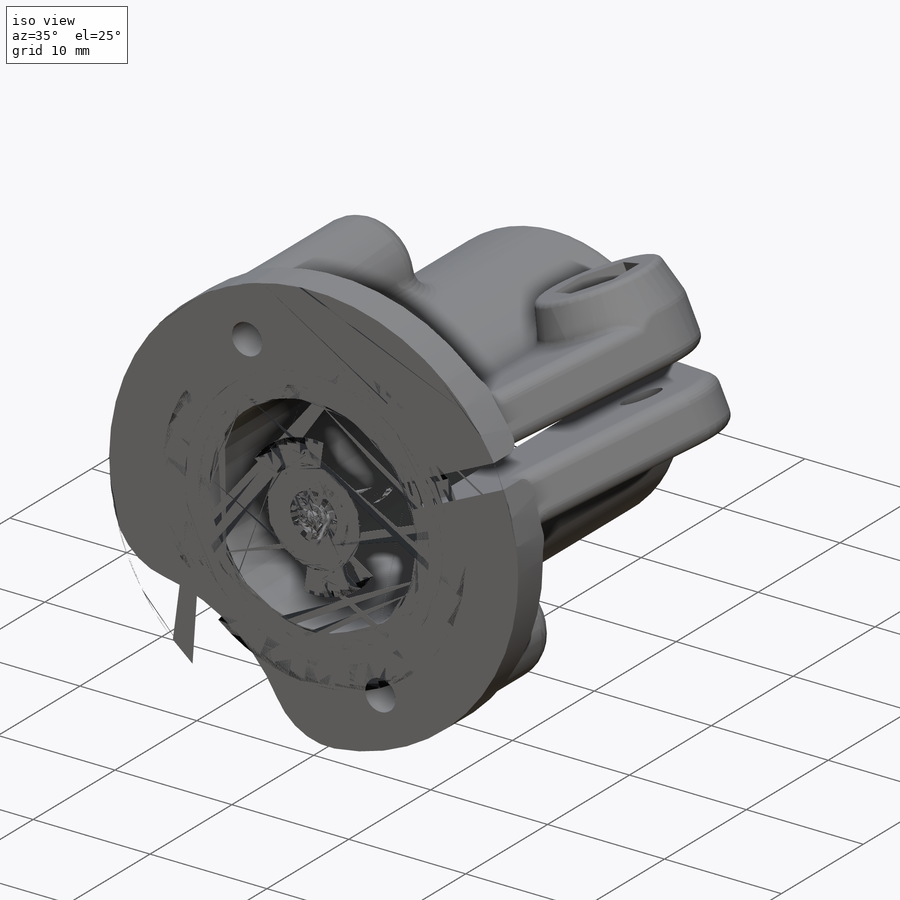
[diagram: iso view]
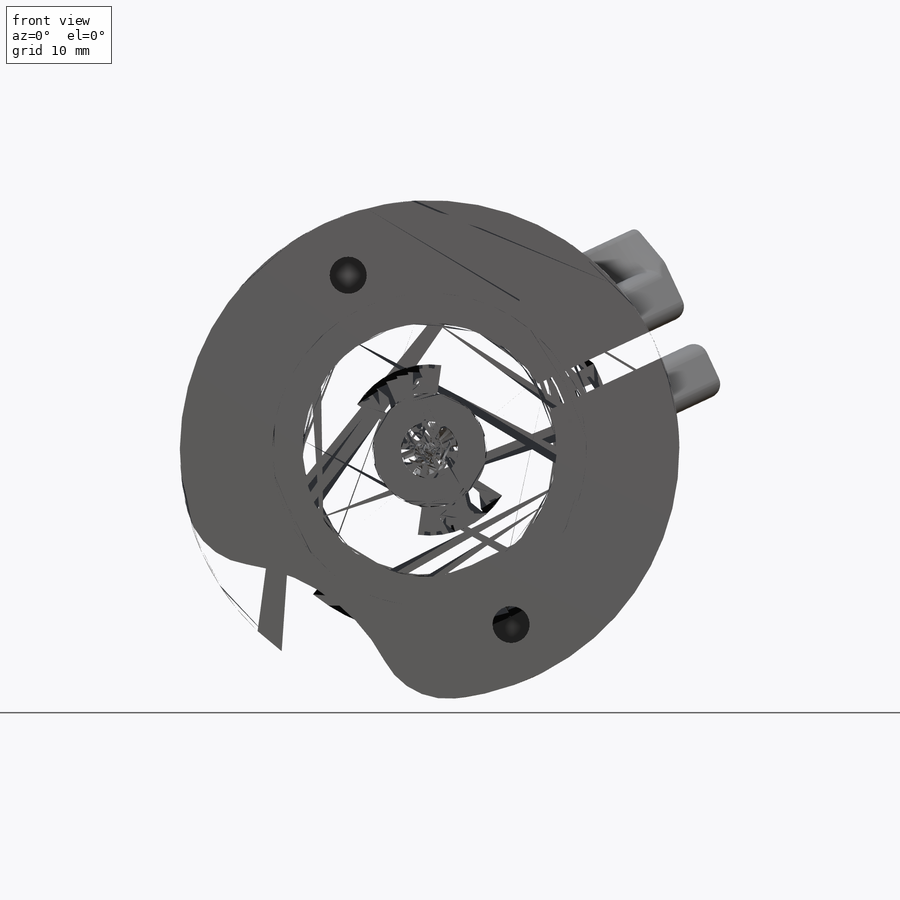
[diagram: front view]
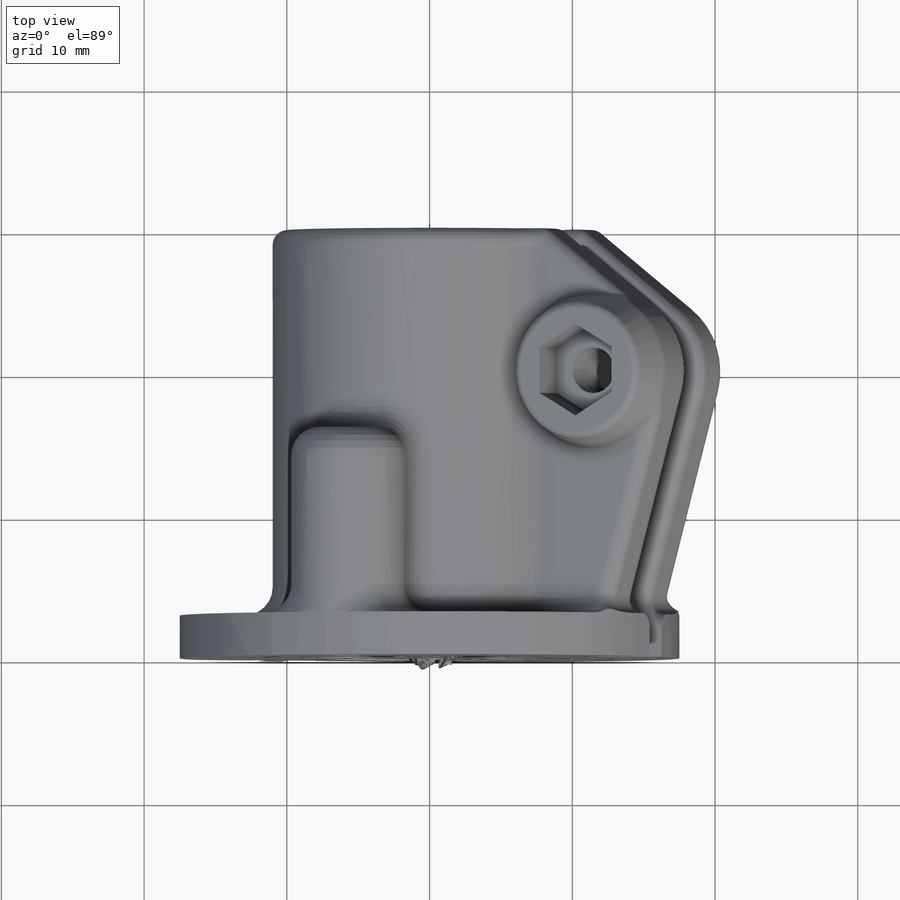
[diagram: top view]
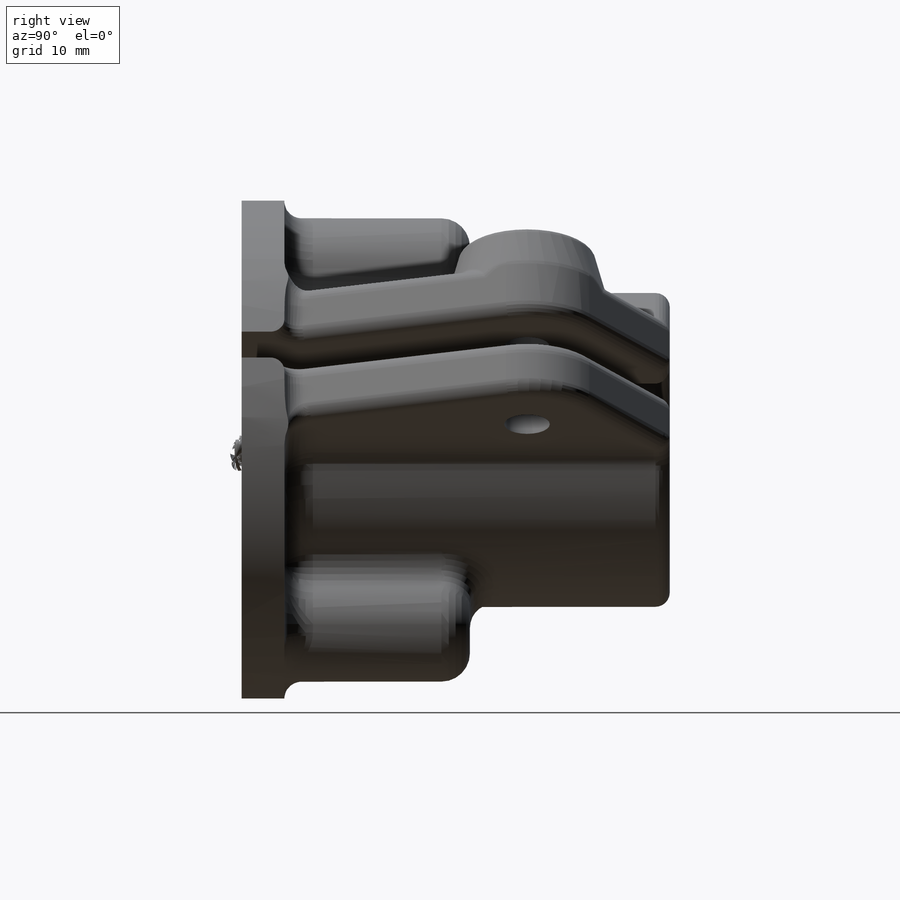
[diagram: right view]
SOLIDWORKS PART (.sldprt)
format: sldprt  version: not decoded by parser v0  size: 950,784 bytes
history: native  units: mm
features: sketch x10, extrude x5, fillet x5, cut_extrude x4, material x1, plane x1 (+13 scaffold rows collapsed)
feature tree (39):
  scaffold x13  (default folders/planes/origin — collapsed)
  material  "ABS"
  sketch  "Sketch1"  dims[c1.D1=19.0mm c1.D3=3.5mm c1.D2=8.0mm c1.D4=17.5mm c2.D4=25.0deg]
  sketch  "Sketch3"  dims[D1=17.8mm D2=22.0mm]
  extrude  "Boss-Extrude1"  Depth=3mm
  extrude  "Boss-Extrude2"  [1 undecoded]
  sketch  "Sketch3<3>"  dims[D1=16.0mm]
  extrude  "Boss-Extrude3"  [1 undecoded]
  sketch  "Sketch3<4>"  dims[D1=30.0mm]
  plane  "Plane1"
  sketch  "Sketch8"  dims[c1.D1=26.0mm c1.D2=8.0mm c1.D3=17.5mm c2.D3=35.0deg]
  cut_extrude  "Cut-Extrude4"  [1 undecoded]
  fillet  "Fillet6"  Radius=5mm
  sketch  "Sketch4"  dims[c1.D1=3.2mm c1.D2=11.0mm c1.D3=3.2mm c1.D4=3.2mm c1.D7=5.55mm c2.D3=4.0mm c2.D4=10.0mm c2.D5=1.9mm c2.D6=5.0mm]
  extrude  "Boss-Extrude5"  Depth=10mm
  sketch  "Sketch5"  dims[D1=1.0mm D2=1.0mm]
  cut_extrude  "Cut-Extrude1"  [1 undecoded]
  sketch  "Sketch6"  dims[D1=2.6mm]
  cut_extrude  "Cut-Extrude2"  Depth=12mm
  sketch  "Sketch7"
  extrude  "Boss-Extrude6"  Depth=3mm
  cut_extrude  "Cut-Extrude3"  [1 undecoded]
  sketch  "Sketch4<5>"  dims[D1=10.0mm D19=5.0mm]
  fillet  "Fillet1"  Radius=2mm
  fillet  "Fillet2"  Radius=1mm
  fillet  "Fillet3"  Radius=1mm
  fillet  "Fillet5"  Radius=0.5mm
decode coverage: 18 of 24 modeling features carry decoded parameters
note: 5 parameter values undecoded
summary: no parameter record found for 5 features
note: suppression state not decoded; provenance and decode notes live in map.json
